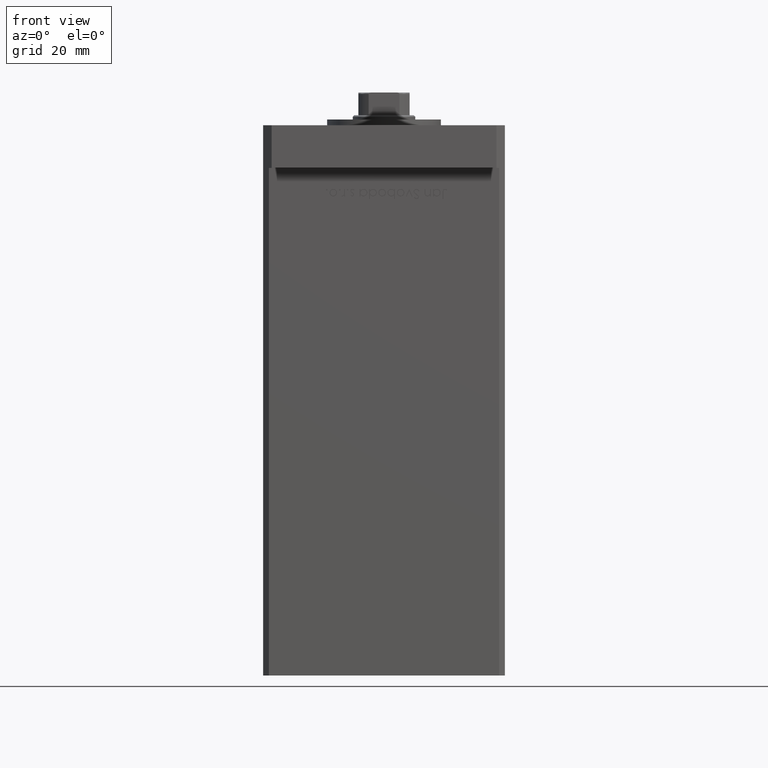
[diagram: clean part render]
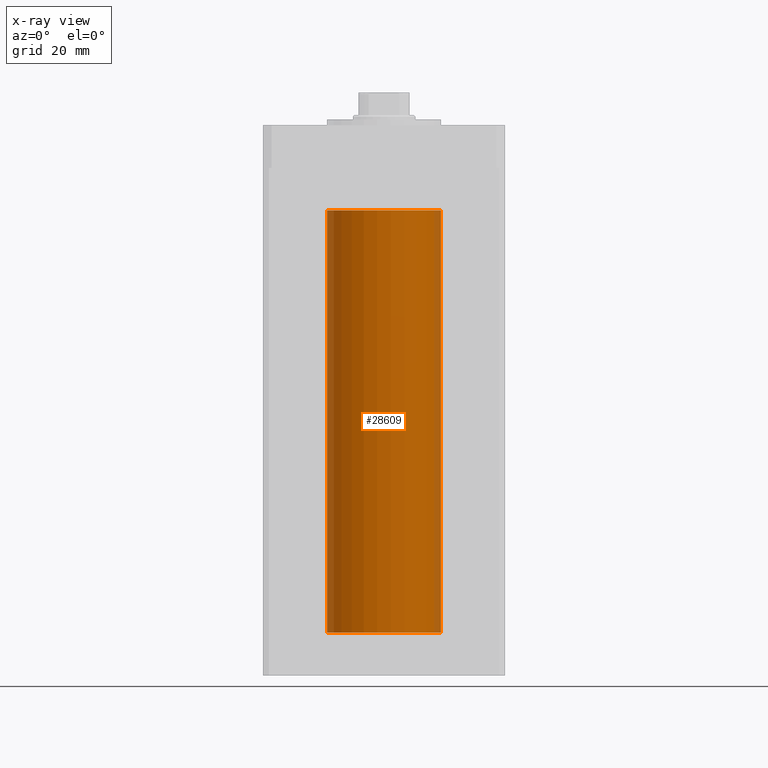
[diagram: x-ray — body ghosted, one internal face saturated and labeled with its STEP entity id]
A machine part, front view, then the same camera in x-ray: the body is ghosted and one INTERNAL B-rep face — a face not visible from any outside direction — is saturated and labeled: STEP entity #28609.
In plain terms, the highlighted cylindrical surface (partial cylindrical patch) has radius 20 mm, axis along (-0, -0, -1).
Its self-contained STEP definition (entity closure, byte-faithful):
#2539 = VERTEX_POINT ( 'NONE', #22508 ) ;
#4898 = CARTESIAN_POINT ( 'NONE',  ( -20.00000000000000000, 0.000000000000000000, 148.5000000000000000 ) ) ;
#4978 = VERTEX_POINT ( 'NONE', #4898 ) ;
#5864 = DIRECTION ( 'NONE',  ( -0.000000000000000000, -0.000000000000000000, -1.000000000000000000 ) ) ;
#6127 = CARTESIAN_POINT ( 'NONE',  ( 0.000000000000000000, 0.000000000000000000, 148.5000000000000000 ) ) ;
#11745 = EDGE_CURVE ( 'NONE', #4978, #43153, #27501, .T. ) ;
#14523 = DIRECTION ( 'NONE',  ( -1.000000000000000000, 0.000000000000000000, 0.000000000000000000 ) ) ;
#15312 = DIRECTION ( 'NONE',  ( -0.000000000000000000, -0.000000000000000000, -1.000000000000000000 ) ) ;
#15448 = AXIS2_PLACEMENT_3D ( 'NONE', #6127, #5864, #14523 ) ;
#16200 = CARTESIAN_POINT ( 'NONE',  ( 20.00000000000000000, 2.449293598294706513E-15, 148.5000000000000000 ) ) ;
#16758 = ORIENTED_EDGE ( 'NONE', *, *, #42949, .F. ) ;
#16866 = DIRECTION ( 'NONE',  ( 1.000000000000000000, 0.000000000000000000, 0.000000000000000000 ) ) ;
#17643 = ORIENTED_EDGE ( 'NONE', *, *, #45814, .T. ) ;
#19190 = AXIS2_PLACEMENT_3D ( 'NONE', #37088, #20570, #19776 ) ;
#19776 = DIRECTION ( 'NONE',  ( 1.000000000000000000, 0.000000000000000000, 0.000000000000000000 ) ) ;
#20393 = CARTESIAN_POINT ( 'NONE',  ( 0.000000000000000000, 0.000000000000000000, 148.5000000000000000 ) ) ;
#20570 = DIRECTION ( 'NONE',  ( -0.000000000000000000, 0.000000000000000000, 1.000000000000000000 ) ) ;
#20923 = CIRCLE ( 'NONE', #19190, 20.00000000000000000 ) ;
#21789 = DIRECTION ( 'NONE',  ( -0.000000000000000000, -0.000000000000000000, -1.000000000000000000 ) ) ;
#22142 = VERTEX_POINT ( 'NONE', #16200 ) ;
#22503 = EDGE_CURVE ( 'NONE', #22142, #2539, #42112, .T. ) ;
#22508 = CARTESIAN_POINT ( 'NONE',  ( 20.00000000000000000, 2.449293598294706513E-15, 0.000000000000000000 ) ) ;
#26178 = CYLINDRICAL_SURFACE ( 'NONE', #15448, 20.00000000000000000 ) ;
#27501 = LINE ( 'NONE', #39973, #48945 ) ;
#27921 = AXIS2_PLACEMENT_3D ( 'NONE', #20393, #49929, #16866 ) ;
#28550 = EDGE_LOOP ( 'NONE', ( #17643, #51144, #16758, #38847 ) ) ;
#28609 = ADVANCED_FACE ( 'NONE', ( #39710 ), #26178, .F. ) ;
#37088 = CARTESIAN_POINT ( 'NONE',  ( 0.000000000000000000, 0.000000000000000000, 0.000000000000000000 ) ) ;
#37433 = CIRCLE ( 'NONE', #27921, 20.00000000000000000 ) ;
#38847 = ORIENTED_EDGE ( 'NONE', *, *, #11745, .F. ) ;
#39710 = FACE_OUTER_BOUND ( 'NONE', #28550, .T. ) ;
#39973 = CARTESIAN_POINT ( 'NONE',  ( -20.00000000000000000, 0.000000000000000000, 148.5000000000000000 ) ) ;
#41958 = CARTESIAN_POINT ( 'NONE',  ( -20.00000000000000000, 0.000000000000000000, 0.000000000000000000 ) ) ;
#42112 = LINE ( 'NONE', #46715, #51582 ) ;
#42949 = EDGE_CURVE ( 'NONE', #43153, #2539, #20923, .T. ) ;
#43153 = VERTEX_POINT ( 'NONE', #41958 ) ;
#45814 = EDGE_CURVE ( 'NONE', #4978, #22142, #37433, .T. ) ;
#46715 = CARTESIAN_POINT ( 'NONE',  ( 20.00000000000000000, 2.449293598294706513E-15, 148.5000000000000000 ) ) ;
#48945 = VECTOR ( 'NONE', #15312, 1000.000000000000000 ) ;
#49929 = DIRECTION ( 'NONE',  ( -0.000000000000000000, 0.000000000000000000, 1.000000000000000000 ) ) ;
#51144 = ORIENTED_EDGE ( 'NONE', *, *, #22503, .T. ) ;
#51582 = VECTOR ( 'NONE', #21789, 1000.000000000000000 ) ;